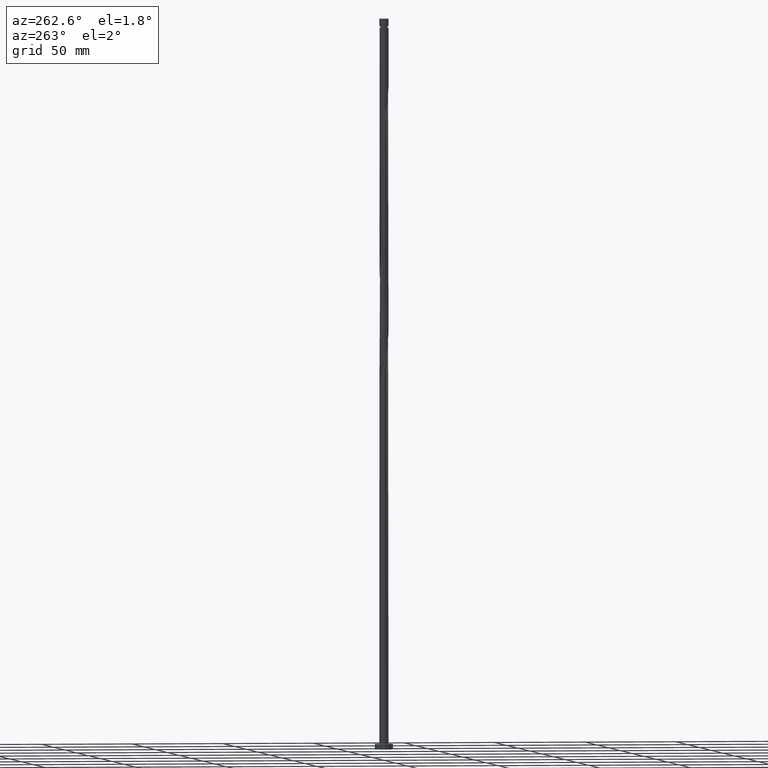
[diagram: clean part render]
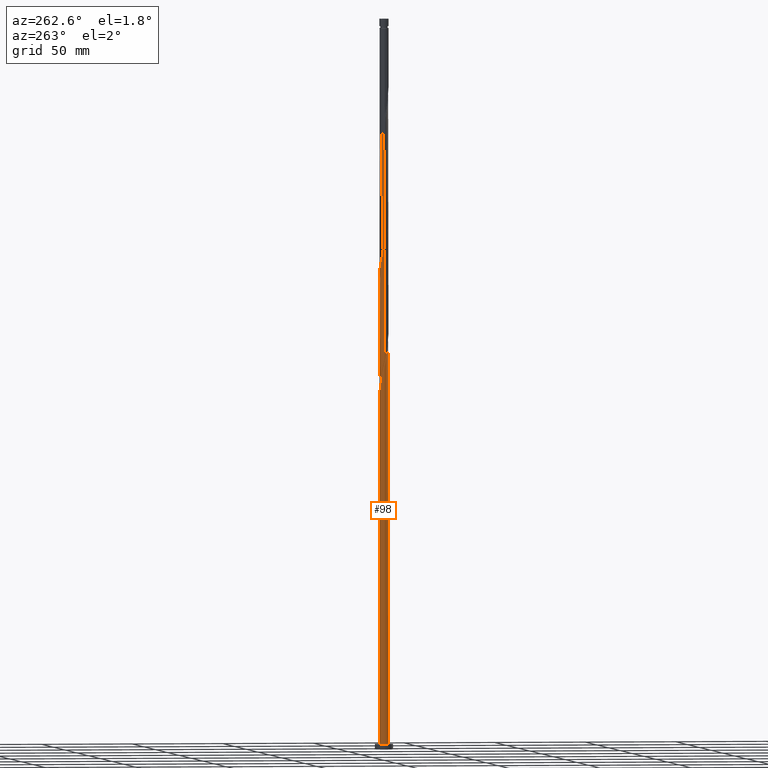
[diagram: same view with one face highlighted and labeled with its STEP entity id]
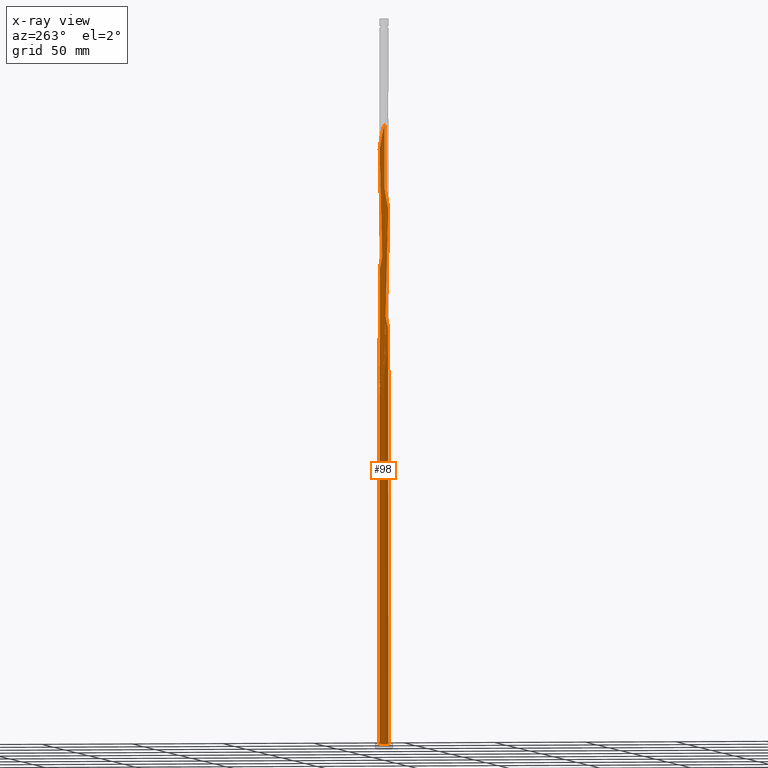
[diagram: x-ray of the same camera — body ghosted, the highlighted face saturated]
A machine part, auxiliary view. The second image highlights one B-rep face of the part: STEP entity #98.
The next image is the same camera in x-ray: the body ghosted, the highlighted face saturated — about 0% of this face is hidden behind the body in this view.
In plain terms, the highlighted cylindrical surface (bore or boss wall) has radius 2.5 mm, axis along (-0, -0, -1).
Its self-contained STEP definition (entity closure, byte-faithful):
#5 = CARTESIAN_POINT ( 'NONE',  ( 1.842554741020978826, -1.689672165344843879, 301.6006143378407387 ) ) ;
#14 = CARTESIAN_POINT ( 'NONE',  ( 0.2399883421524063309, 2.502288696838022908, 196.0450587822852242 ) ) ;
#15 = CARTESIAN_POINT ( 'NONE',  ( -2.153593095974919880, 1.269660102928802825, 337.1561698933962816 ) ) ;
#50 = CARTESIAN_POINT ( 'NONE',  ( 0.000000000000000000, 0.000000000000000000, 400.0000000000000000 ) ) ;
#59 = CARTESIAN_POINT ( 'NONE',  ( -1.237012764418927047, 2.188342420042406644, 198.2672810045074812 ) ) ;
#70 = CARTESIAN_POINT ( 'NONE',  ( -2.020146441809248294, 1.496011858354687307, 269.3783921156186238 ) ) ;
#77 = CARTESIAN_POINT ( 'NONE',  ( -0.7985322446979098432, -2.383566525371198619, 222.7117254489518530 ) ) ;
#79 = CARTESIAN_POINT ( 'NONE',  ( -2.488580897537961079, -0.2386736609037002632, 277.1561698933962816 ) ) ;
#87 = DIRECTION ( 'NONE',  ( -0.000000000000000000, -0.000000000000000000, -1.000000000000000000 ) ) ;
#89 = CARTESIAN_POINT ( 'NONE',  ( 1.873015379995221386, 1.655842198490355521, 250.4895032267296244 ) ) ;
#98 = ADVANCED_FACE ( 'NONE', ( #349 ), #626, .T. ) ;
#101 = CARTESIAN_POINT ( 'NONE',  ( 0.7549990949542207952, -2.397711303161981000, 296.0450587822852526 ) ) ;
#109 = CARTESIAN_POINT ( 'NONE',  ( -2.370509098548533533, 0.7941578015096464327, 272.7117254489518814 ) ) ;
#130 = CARTESIAN_POINT ( 'NONE',  ( -1.237012764418927047, 2.188342420042406644, 331.6006143378407387 ) ) ;
#139 = CARTESIAN_POINT ( 'NONE',  ( 2.370509098548533533, -0.7941578015096472098, 306.0450587822851958 ) ) ;
#147 = CARTESIAN_POINT ( 'NONE',  ( 2.513666510145305288, -0.02288673122879862978, 309.3783921156185102 ) ) ;
#157 = CARTESIAN_POINT ( 'NONE',  ( 2.453978446956477821, -0.5450072555163764099, 307.1561698933962816 ) ) ;
#172 = CARTESIAN_POINT ( 'NONE',  ( 0.4974937185533142014, 2.449999999999999289, 194.9339476711740247 ) ) ;
#216 = CARTESIAN_POINT ( 'NONE',  ( -0.7549990949542217944, 2.397711303161980112, 262.7117254489518814 ) ) ;
#223 = CARTESIAN_POINT ( 'NONE',  ( -1.698979352002255805, -1.852704047645605812, 218.2672810045074243 ) ) ;
#225 = CARTESIAN_POINT ( 'NONE',  ( -1.276653745726378242, -2.165455688813609392, 287.1561698933963953 ) ) ;
#232 = CARTESIAN_POINT ( 'NONE',  ( -0.02276135532044886930, -2.499896381993460981, 226.0450587822851389 ) ) ;
#234 = CARTESIAN_POINT ( 'NONE',  ( 1.450987902325817425, -2.035837446188703659, 232.7117254489517961 ) ) ;
#244 = CARTESIAN_POINT ( 'NONE',  ( -1.487816548864316246, -2.009079868229606269, 286.0450587822851389 ) ) ;
#247 = ORIENTED_EDGE ( 'NONE', *, *, #943, .F. ) ;
#252 = CARTESIAN_POINT ( 'NONE',  ( 1.664963040232709579, -1.883332472335000896, 233.8228365600629388 ) ) ;
#262 = CARTESIAN_POINT ( 'NONE',  ( 2.047051407988187410, 1.458980349335109006, 316.0450587822853663 ) ) ;
#267 = EDGE_CURVE ( 'NONE', #854, #1574, #1445, .T. ) ;
#284 = CARTESIAN_POINT ( 'NONE',  ( 1.450987902325817425, -2.035837446188703659, 299.3783921156185670 ) ) ;
#297 = VERTEX_POINT ( 'NONE', #1344 ) ;
#302 = AXIS2_PLACEMENT_3D ( 'NONE', #1764, #1050, #621 ) ;
#330 = CARTESIAN_POINT ( 'NONE',  ( -1.487816548864312916, 2.009079868229604049, 203.8228365600629388 ) ) ;
#340 = DIRECTION ( 'NONE',  ( -1.000000000000000000, 0.000000000000000000, 0.000000000000000000 ) ) ;
#349 = FACE_OUTER_BOUND ( 'NONE', #1630, .T. ) ;
#359 = CARTESIAN_POINT ( 'NONE',  ( 2.500000000000000000, 0.000000000000000000, 3.000000000000000000 ) ) ;
#361 = CARTESIAN_POINT ( 'NONE',  ( 0.5420216487456075427, 2.440535296260046838, 257.1561698933962816 ) ) ;
#369 = CARTESIAN_POINT ( 'NONE',  ( -2.047051407988186522, -1.458980349335109228, 216.0450587822852526 ) ) ;
#371 = CARTESIAN_POINT ( 'NONE',  ( -2.153593095974919880, 1.269660102928802825, 270.4895032267295960 ) ) ;
#379 = CARTESIAN_POINT ( 'NONE',  ( -2.500000000000004441, 2.780405268243619945E-15, 209.4751710943192506 ) ) ;
#381 = CARTESIAN_POINT ( 'NONE',  ( 0.4974937185533135353, -2.450000000000003286, 294.9339476711740531 ) ) ;
#389 = CARTESIAN_POINT ( 'NONE',  ( -1.037592995212143432, -2.274511107092404227, 221.6006143378407387 ) ) ;
#391 = CARTESIAN_POINT ( 'NONE',  ( 0.7985322446979101763, 2.383566525371198619, 256.0450587822852526 ) ) ;
#402 = CARTESIAN_POINT ( 'NONE',  ( -1.873015379995220941, -1.655842198490356854, 283.8228365600629672 ) ) ;
#411 = CARTESIAN_POINT ( 'NONE',  ( 2.020146441809247850, -1.496011858354687973, 302.7117254489519951 ) ) ;
#419 = CARTESIAN_POINT ( 'NONE',  ( 0.5420216487456075427, 2.440535296260046838, 323.8228365600629104 ) ) ;
#429 = CARTESIAN_POINT ( 'NONE',  ( 1.487816548864316690, 2.009079868229606269, 319.3783921156185670 ) ) ;
#436 = CARTESIAN_POINT ( 'NONE',  ( 2.488580897537961079, 0.2386736609036988477, 310.4895032267295960 ) ) ;
#443 = EDGE_CURVE ( 'NONE', #1892, #1574, #1181, .T. ) ;
#508 = CARTESIAN_POINT ( 'NONE',  ( 0.000000000000000000, 0.000000000000000000, 3.000000000000000000 ) ) ;
#509 = CARTESIAN_POINT ( 'NONE',  ( -2.488580897537961079, -0.2386736609037002632, 210.4895032267295960 ) ) ;
#511 = CARTESIAN_POINT ( 'NONE',  ( 1.237012764418926603, -2.188342420042407976, 231.6006143378407671 ) ) ;
#512 = AXIS2_PLACEMENT_3D ( 'NONE', #508, #639, #1378 ) ;
#515 = CIRCLE ( 'NONE', #302, 2.500000000000000000 ) ;
#521 = CARTESIAN_POINT ( 'NONE',  ( 0.9960059296865733103, -2.293026861602193378, 230.4895032267295960 ) ) ;
#530 = CARTESIAN_POINT ( 'NONE',  ( -0.7985322446979098432, -2.383566525371198619, 289.3783921156185102 ) ) ;
#539 = CARTESIAN_POINT ( 'NONE',  ( -2.047051407988186522, -1.458980349335109228, 282.7117254489518245 ) ) ;
#548 = CARTESIAN_POINT ( 'NONE',  ( 2.463495284930619089, 0.5002340530361986115, 244.9339476711741099 ) ) ;
#556 = DIRECTION ( 'NONE',  ( -0.000000000000000000, -0.000000000000000000, -1.000000000000000000 ) ) ;
#560 = ORIENTED_EDGE ( 'NONE', *, *, #1119, .F. ) ;
#574 = CARTESIAN_POINT ( 'NONE',  ( 0.2855110527933026887, 2.497504067148895945, 324.9339476711741668 ) ) ;
#584 = CARTESIAN_POINT ( 'NONE',  ( -2.463495284930614204, 0.5002340530361987225, 211.6006143378407387 ) ) ;
#585 = CARTESIAN_POINT ( 'NONE',  ( 1.276653745726379130, 2.165455688813608504, 320.4895032267297665 ) ) ;
#594 = VERTEX_POINT ( 'NONE', #897 ) ;
#597 = CARTESIAN_POINT ( 'NONE',  ( 1.037592995212143432, 2.274511107092404671, 321.6006143378405682 ) ) ;
#602 = EDGE_CURVE ( 'NONE', #1032, #297, #842, .T. ) ;
#609 = CARTESIAN_POINT ( 'NONE',  ( -2.305657494602547875, 1.001492208794207084, 209.3783921156185954 ) ) ;
#615 = ORIENTED_EDGE ( 'NONE', *, *, #443, .T. ) ;
#621 = DIRECTION ( 'NONE',  ( 1.000000000000000000, 0.000000000000000000, 0.000000000000000000 ) ) ;
#624 = CARTESIAN_POINT ( 'NONE',  ( -2.500000000000000000, 0.1196099982168744441, 213.2175090557981889 ) ) ;
#626 = CYLINDRICAL_SURFACE ( 'NONE', #1647, 2.500000000000000000 ) ;
#639 = DIRECTION ( 'NONE',  ( 0.000000000000000000, 0.000000000000000000, 1.000000000000000000 ) ) ;
#647 = CARTESIAN_POINT ( 'NONE',  ( -2.500000000000000444, -1.621903073142123928E-15, 213.7260575813622552 ) ) ;
#650 = CARTESIAN_POINT ( 'NONE',  ( -2.500000000000004441, 2.780405268243619945E-15, 209.4751710943192506 ) ) ;
#652 = CARTESIAN_POINT ( 'NONE',  ( -2.483822478550890889, 0.2839469933725859430, 274.9339476711739962 ) ) ;
#657 =( BOUNDED_CURVE ( )  B_SPLINE_CURVE ( 2, ( #379, #1823, #509, #1112, #1700, #1095, #1682, #369, #1535, #223, #802, #957, #389, #77, #811, #661, #232, #832, #804, #1563, #521, #511, #234, #252, #978, #813, #1105, #1097, #1420, #1547, #1702, #823, #1114, #548, #663, #1404, #1712, #1135, #89, #1125, #1237, #1272, #959, #391, #361, #939, #1863, #968, #1527, #216, #794, #1262, #673, #1393, #1383, #70, #371, #1843, #109, #691, #652, #1825, #79, #1684, #950, #1556, #682, #539, #402, #1537, #244, #225, #1254, #530, #1693, #1245, #1412, #1834, #381, #101, #1853, #1150, #284, #1453, #5, #411, #1736, #850, #139, #157, #869, #147, #436, #1571, #1322, #701, #729, #262, #1728, #1299, #429, #585, #597, #1442, #419, #574, #1759, #719, #1007, #1462, #1159, #130, #709, #737, #1601, #987, #15, #996, #1720, #839, #1168, #1430, #1283 ),
 .UNSPECIFIED., .F., .T. ) 
 B_SPLINE_CURVE_WITH_KNOTS ( ( 3, 2, 2, 2, 2, 2, 2, 2, 2, 2, 2, 2, 2, 2, 2, 2, 2, 2, 2, 2, 2, 2, 2, 2, 2, 2, 2, 2, 2, 2, 2, 2, 2, 2, 2, 2, 2, 2, 2, 2, 2, 2, 2, 2, 2, 2, 2, 2, 2, 2, 2, 2, 2, 2, 2, 2, 2, 2, 2, 2, 2, 3 ),
 ( 0.05452860127731162104, 0.05833333333333334814, 0.06666666666666665186, 0.07499999999999995559, 0.08333333333333337034, 0.09166666666666667407, 0.09999999999999997780, 0.1083333333333332815, 0.1166666666666666963, 0.1250000000000000000, 0.1333333333333333037, 0.1416666666666667185, 0.1500000000000000222, 0.1583333333333333259, 0.1666666666666666297, 0.1750000000000000444, 0.1833333333333333481, 0.1916666666666666519, 0.1999999999999999556, 0.2083333333333333703, 0.2166666666666666741, 0.2249999999999999778, 0.2333333333333332815, 0.2416666666666666963, 0.2500000000000000000, 0.2583333333333333037, 0.2666666666666667185, 0.2750000000000000222, 0.2833333333333333259, 0.2916666666666666297, 0.3000000000000000444, 0.3083333333333333481, 0.3166666666666666519, 0.3249999999999999556, 0.3333333333333333703, 0.3416666666666666741, 0.3499999999999999778, 0.3583333333333332815, 0.3666666666666666963, 0.3750000000000000000, 0.3833333333333333037, 0.3916666666666667185, 0.4000000000000000222, 0.4083333333333333259, 0.4166666666666666297, 0.4250000000000000444, 0.4333333333333333481, 0.4416666666666666519, 0.4499999999999999556, 0.4583333333333333703, 0.4666666666666666741, 0.4749999999999999778, 0.4833333333333332815, 0.4916666666666666963, 0.5000000000000000000, 0.5083333333333333037, 0.5166666666666666075, 0.5250000000000000222, 0.5333333333333333259, 0.5416666666666667407, 0.5500000000000000444, 0.5545286012773115170 ),
 .UNSPECIFIED. ) 
 CURVE ( )  GEOMETRIC_REPRESENTATION_ITEM ( )  RATIONAL_B_SPLINE_CURVE ( ( 0.9066196499552625632, 0.9068171577856753984, 0.9090909090909743417, 0.9041108139712222824, 0.9090909090909743417, 0.9041108139712222824, 0.9090909090909743417, 0.9041108139712222824, 0.9090909090909743417, 0.9041108139712222824, 0.9090909090909743417, 0.9041108139712222824, 0.9090909090909743417, 0.9041108139712222824, 0.9090909090909743417, 0.9041108139712222824, 0.9090909090909743417, 0.9041108139712222824, 0.9090909090909743417, 0.9041108139712222824, 0.9090909090909743417, 0.9041108139712222824, 0.9090909090909743417, 0.9041108139712222824, 0.9090909090909743417, 0.9041108139712222824, 0.9090909090909743417, 0.9041108139712222824, 0.9090909090909743417, 0.9041108139712222824, 0.9090909090909743417, 0.9041108139712222824, 0.9090909090909743417, 0.9041108139712222824, 0.9090909090909743417, 0.9041108139712222824, 0.9090909090909743417, 0.9041108139712222824, 0.9090909090909743417, 0.9041108139712222824, 0.9090909090909743417, 0.9041108139712222824, 0.9090909090909743417, 0.9041108139712222824, 0.9090909090909743417, 0.9041108139712222824, 0.9090909090909743417, 0.9041108139712222824, 0.9090909090909743417, 0.9041108139712222824, 0.9090909090909743417, 0.9041108139712222824, 0.9090909090909743417, 0.9041108139712222824, 0.9090909090909743417, 0.9041108139712222824, 0.9090909090909743417, 0.9041108139712222824, 0.9090909090909743417, 0.9041108139712222824, 0.9090909090909743417, 0.9041108139712222824, 0.9090909090909743417, 0.9041108139712222824, 0.9090909090909743417, 0.9041108139712222824, 0.9090909090909743417, 0.9041108139712222824, 0.9090909090909743417, 0.9041108139712222824, 0.9090909090909743417, 0.9041108139712222824, 0.9090909090909743417, 0.9041108139712222824, 0.9090909090909743417, 0.9041108139712222824, 0.9090909090909743417, 0.9041108139712222824, 0.9090909090909743417, 0.9041108139712222824, 0.9090909090909743417, 0.9041108139712222824, 0.9090909090909743417, 0.9041108139712222824, 0.9090909090909743417, 0.9041108139712222824, 0.9090909090909743417, 0.9041108139712222824, 0.9090909090909743417, 0.9041108139712222824, 0.9090909090909743417, 0.9041108139712222824, 0.9090909090909743417, 0.9041108139712222824, 0.9090909090909743417, 0.9041108139712222824, 0.9090909090909743417, 0.9041108139712222824, 0.9090909090909743417, 0.9041108139712222824, 0.9090909090909743417, 0.9041108139712222824, 0.9090909090909743417, 0.9041108139712222824, 0.9090909090909743417, 0.9041108139712222824, 0.9090909090909743417, 0.9041108139712222824, 0.9090909090909743417, 0.9041108139712222824, 0.9090909090909743417, 0.9041108139712222824, 0.9090909090909743417, 0.9041108139712222824, 0.9090909090909743417, 0.9041108139712222824, 0.9090909090909743417, 0.9041108139712222824, 0.9090909090909743417, 0.9041108139712222824, 0.9090909090909743417, 0.9063845652765213368, 0.9066196499552625632 ) ) 
 REPRESENTATION_ITEM ( '' )  );
#661 = CARTESIAN_POINT ( 'NONE',  ( -0.2855110527933024667, -2.497504067148895945, 224.9339476711740815 ) ) ;
#663 = CARTESIAN_POINT ( 'NONE',  ( 2.384576389766585702, 0.7508631309152021815, 246.0450587822851958 ) ) ;
#671 = CARTESIAN_POINT ( 'NONE',  ( -2.483822478550890889, 0.2839469933725859430, 208.2672810045074243 ) ) ;
#673 = CARTESIAN_POINT ( 'NONE',  ( -1.450987902325818091, 2.035837446188702771, 266.0450587822851958 ) ) ;
#682 = CARTESIAN_POINT ( 'NONE',  ( -2.176354451295368087, -1.230236279064658378, 281.6006143378407387 ) ) ;
#684 = CARTESIAN_POINT ( 'NONE',  ( -0.4974937185533133133, 2.450000000000004174, 194.9339476711740531 ) ) ;
#691 = CARTESIAN_POINT ( 'NONE',  ( -2.453978446956477821, 0.5450072555163749666, 273.8228365600630809 ) ) ;
#701 = CARTESIAN_POINT ( 'NONE',  ( 2.305657494602551871, 1.001492208794206640, 313.8228365600627967 ) ) ;
#709 = CARTESIAN_POINT ( 'NONE',  ( -1.450987902325818091, 2.035837446188702771, 332.7117254489518245 ) ) ;
#719 = CARTESIAN_POINT ( 'NONE',  ( -0.2399883421524042215, 2.502288696838027793, 327.1561698933962248 ) ) ;
#729 = CARTESIAN_POINT ( 'NONE',  ( 2.176354451295368087, 1.230236279064657712, 314.9339476711739394 ) ) ;
#737 = CARTESIAN_POINT ( 'NONE',  ( -1.664963040232709801, 1.883332472335000229, 333.8228365600629672 ) ) ;
#762 = CARTESIAN_POINT ( 'NONE',  ( 0.000000000000000000, 0.000000000000000000, 194.9339476711740815 ) ) ;
#794 = CARTESIAN_POINT ( 'NONE',  ( -0.9960059296865743095, 2.293026861602192934, 263.8228365600629104 ) ) ;
#802 = CARTESIAN_POINT ( 'NONE',  ( -1.487816548864316246, -2.009079868229606269, 219.3783921156185102 ) ) ;
#804 = CARTESIAN_POINT ( 'NONE',  ( 0.4974937185533135353, -2.450000000000003286, 228.2672810045074243 ) ) ;
#811 = CARTESIAN_POINT ( 'NONE',  ( -0.5420216487456060994, -2.440535296260047282, 223.8228365600629104 ) ) ;
#813 = CARTESIAN_POINT ( 'NONE',  ( 2.020146441809247850, -1.496011858354687973, 236.0450587822852242 ) ) ;
#823 = CARTESIAN_POINT ( 'NONE',  ( 2.513666510145305288, -0.02288673122879862978, 242.7117254489518814 ) ) ;
#832 = CARTESIAN_POINT ( 'NONE',  ( 0.2399883421524056648, -2.502288696838027349, 227.1561698933963100 ) ) ;
#839 = CARTESIAN_POINT ( 'NONE',  ( -2.453978446956477821, 0.5450072555163749666, 340.4895032267295960 ) ) ;
#842 = CIRCLE ( 'NONE', #512, 2.500000000000000000 ) ;
#850 = CARTESIAN_POINT ( 'NONE',  ( 2.287039750140592798, -1.043308347502918565, 304.9339476711742236 ) ) ;
#854 = VERTEX_POINT ( 'NONE', #647 ) ;
#856 = CARTESIAN_POINT ( 'NONE',  ( 0.4974937185533142014, 2.449999999999999289, 194.9339476711740531 ) ) ;
#869 = CARTESIAN_POINT ( 'NONE',  ( 2.483822478550890889, -0.2839469933725862205, 308.2672810045074243 ) ) ;
#889 = CARTESIAN_POINT ( 'NONE',  ( -0.2855110527933011899, 2.497504067148891949, 198.2672810045074243 ) ) ;
#897 = CARTESIAN_POINT ( 'NONE',  ( -2.500000000000004441, 1.180924818232504868E-15, 342.8085044276526219 ) ) ;
#911 = EDGE_CURVE ( 'NONE', #1892, #1448, #1835, .T. ) ;
#914 = ORIENTED_EDGE ( 'NONE', *, *, #267, .F. ) ;
#925 = CARTESIAN_POINT ( 'NONE',  ( -2.500000000000005329, 0.1424343436160755427, 208.8695797849346434 ) ) ;
#936 = VECTOR ( 'NONE', #556, 1000.000000000000000 ) ;
#937 = CARTESIAN_POINT ( 'NONE',  ( -2.020146441809248294, 1.496011858354687307, 202.7117254489518530 ) ) ;
#939 = CARTESIAN_POINT ( 'NONE',  ( 0.2855110527933026887, 2.497504067148895945, 258.2672810045074243 ) ) ;
#943 = EDGE_CURVE ( 'NONE', #594, #854, #1514, .T. ) ;
#948 = CARTESIAN_POINT ( 'NONE',  ( -0.7549990949542217944, 2.397711303161980112, 196.0450587822851958 ) ) ;
#950 = CARTESIAN_POINT ( 'NONE',  ( -2.384576389766585702, -0.7508631309152030697, 279.3783921156185670 ) ) ;
#957 = CARTESIAN_POINT ( 'NONE',  ( -1.276653745726378242, -2.165455688813609392, 220.4895032267296244 ) ) ;
#959 = CARTESIAN_POINT ( 'NONE',  ( 1.037592995212143432, 2.274511107092404671, 254.9339476711739962 ) ) ;
#966 = CARTESIAN_POINT ( 'NONE',  ( -1.450987902325818091, 2.035837446188702771, 199.3783921156185102 ) ) ;
#968 = CARTESIAN_POINT ( 'NONE',  ( -0.2399883421524042215, 2.502288696838027793, 260.4895032267296529 ) ) ;
#978 = CARTESIAN_POINT ( 'NONE',  ( 1.842554741020978826, -1.689672165344843879, 234.9339476711739962 ) ) ;
#987 = CARTESIAN_POINT ( 'NONE',  ( -2.020146441809248294, 1.496011858354687307, 336.0450587822852526 ) ) ;
#996 = CARTESIAN_POINT ( 'NONE',  ( -2.287039750140593686, 1.043308347502918121, 338.2672810045074812 ) ) ;
#1007 = CARTESIAN_POINT ( 'NONE',  ( -0.4974937185533132022, 2.450000000000004174, 328.2672810045073675 ) ) ;
#1027 = CARTESIAN_POINT ( 'NONE',  ( -2.500000000000000000, 0.000000000000000000, 400.0000000000000000 ) ) ;
#1032 = VERTEX_POINT ( 'NONE', #359 ) ;
#1038 = CARTESIAN_POINT ( 'NONE',  ( -2.176354451295364090, 1.230236279064657046, 208.2672810045073959 ) ) ;
#1050 = DIRECTION ( 'NONE',  ( 0.000000000000000000, 0.000000000000000000, 1.000000000000000000 ) ) ;
#1054 = CARTESIAN_POINT ( 'NONE',  ( -1.698979352002252252, 1.852704047645602703, 204.9339476711740531 ) ) ;
#1065 = CARTESIAN_POINT ( 'NONE',  ( -2.384576389766580373, 0.7508631309152032918, 210.4895032267296813 ) ) ;
#1067 = DIRECTION ( 'NONE',  ( -0.000000000000000000, -0.000000000000000000, -1.000000000000000000 ) ) ;
#1095 = CARTESIAN_POINT ( 'NONE',  ( -2.305657494602551427, -1.001492208794207972, 213.8228365600630241 ) ) ;
#1097 = CARTESIAN_POINT ( 'NONE',  ( 2.287039750140592798, -1.043308347502918565, 238.2672810045074527 ) ) ;
#1105 = CARTESIAN_POINT ( 'NONE',  ( 2.153593095974919436, -1.269660102928803491, 237.1561698933963100 ) ) ;
#1112 = CARTESIAN_POINT ( 'NONE',  ( -2.463495284930619089, -0.5002340530361988336, 211.6006143378407671 ) ) ;
#1114 = CARTESIAN_POINT ( 'NONE',  ( 2.488580897537961079, 0.2386736609036988477, 243.8228365600629388 ) ) ;
#1117 = ORIENTED_EDGE ( 'NONE', *, *, #1740, .T. ) ;
#1119 = EDGE_CURVE ( 'NONE', #1448, #594, #657, .T. ) ;
#1125 = CARTESIAN_POINT ( 'NONE',  ( 1.698979352002256027, 1.852704047645605367, 251.6006143378408524 ) ) ;
#1135 = CARTESIAN_POINT ( 'NONE',  ( 2.047051407988187410, 1.458980349335109006, 249.3783921156185954 ) ) ;
#1150 = CARTESIAN_POINT ( 'NONE',  ( 1.237012764418926603, -2.188342420042407976, 298.2672810045073675 ) ) ;
#1159 = CARTESIAN_POINT ( 'NONE',  ( -0.9960059296865743095, 2.293026861602192934, 330.4895032267296529 ) ) ;
#1164 = CARTESIAN_POINT ( 'NONE',  ( -2.500000000000004441, 2.780405268243619945E-15, 209.4751710943192506 ) ) ;
#1168 = CARTESIAN_POINT ( 'NONE',  ( -2.483822478550890889, 0.2839469933725859430, 341.6006143378406819 ) ) ;
#1181 = CIRCLE ( 'NONE', #1551, 2.500000000000000000 ) ;
#1197 = EDGE_CURVE ( 'NONE', #1448, #297, #1746, .T. ) ;
#1226 = CARTESIAN_POINT ( 'NONE',  ( -1.664963040232709801, 1.883332472335000229, 200.4895032267296813 ) ) ;
#1237 = CARTESIAN_POINT ( 'NONE',  ( 1.487816548864316690, 2.009079868229606269, 252.7117254489517677 ) ) ;
#1245 = CARTESIAN_POINT ( 'NONE',  ( -0.2855110527933024667, -2.497504067148895945, 291.6006143378407955 ) ) ;
#1252 = CARTESIAN_POINT ( 'NONE',  ( -2.370509098548533533, 0.7941578015096464327, 206.0450587822851674 ) ) ;
#1254 = CARTESIAN_POINT ( 'NONE',  ( -1.037592995212143432, -2.274511107092404227, 288.2672810045073106 ) ) ;
#1260 = CARTESIAN_POINT ( 'NONE',  ( -2.500000000000000000, 0.000000000000000000, 400.0000000000000000 ) ) ;
#1262 = CARTESIAN_POINT ( 'NONE',  ( -1.237012764418927047, 2.188342420042406644, 264.9339476711740531 ) ) ;
#1272 = CARTESIAN_POINT ( 'NONE',  ( 1.276653745726379130, 2.165455688813608504, 253.8228365600629957 ) ) ;
#1283 = CARTESIAN_POINT ( 'NONE',  ( -2.500000000000004441, 1.180924818232504868E-15, 342.8085044276526219 ) ) ;
#1299 = CARTESIAN_POINT ( 'NONE',  ( 1.698979352002256027, 1.852704047645605367, 318.2672810045074812 ) ) ;
#1321 = CARTESIAN_POINT ( 'NONE',  ( -2.488580897537957526, 0.2386736609037011514, 212.7117254489518814 ) ) ;
#1322 = CARTESIAN_POINT ( 'NONE',  ( 2.384576389766585702, 0.7508631309152021815, 312.7117254489518814 ) ) ;
#1323 = ORIENTED_EDGE ( 'NONE', *, *, #911, .F. ) ;
#1331 = CARTESIAN_POINT ( 'NONE',  ( -2.500000000000000444, -1.621903073142123731E-15, 213.7260575813622552 ) ) ;
#1344 = CARTESIAN_POINT ( 'NONE',  ( -2.500000000000000000, 0.000000000000000000, 3.000000000000000000 ) ) ;
#1352 = DIRECTION ( 'NONE',  ( 0.000000000000000000, -0.000000000000000000, -1.000000000000000000 ) ) ;
#1378 = DIRECTION ( 'NONE',  ( 1.000000000000000000, 0.000000000000000000, 0.000000000000000000 ) ) ;
#1383 = CARTESIAN_POINT ( 'NONE',  ( -1.842554741020979048, 1.689672165344843879, 268.2672810045073106 ) ) ;
#1391 = CARTESIAN_POINT ( 'NONE',  ( -2.453978446956477821, 0.5450072555163749666, 207.1561698933963669 ) ) ;
#1393 = CARTESIAN_POINT ( 'NONE',  ( -1.664963040232709801, 1.883332472335000229, 267.1561698933962816 ) ) ;
#1402 = CARTESIAN_POINT ( 'NONE',  ( -2.287039750140593686, 1.043308347502918121, 204.9339476711740815 ) ) ;
#1404 = CARTESIAN_POINT ( 'NONE',  ( 2.305657494602551871, 1.001492208794206640, 247.1561698933963385 ) ) ;
#1412 = CARTESIAN_POINT ( 'NONE',  ( -0.02276135532044886930, -2.499896381993460981, 292.7117254489518245 ) ) ;
#1420 = CARTESIAN_POINT ( 'NONE',  ( 2.370509098548533533, -0.7941578015096472098, 239.3783921156184817 ) ) ;
#1430 = CARTESIAN_POINT ( 'NONE',  ( -2.500000000000005329, 0.1424343436160788179, 342.2029131182680999 ) ) ;
#1442 = CARTESIAN_POINT ( 'NONE',  ( 0.7985322446979101763, 2.383566525371198619, 322.7117254489519382 ) ) ;
#1445 =( BOUNDED_CURVE ( )  B_SPLINE_CURVE ( 2, ( #1331, #624, #1321, #584, #1065, #609, #1038, #1634, #1503, #1054, #330, #1784, #1758, #1767, #1624, #889, #1643, #14, #172 ),
 .UNSPECIFIED., .F., .T. ) 
 B_SPLINE_CURVE_WITH_KNOTS ( ( 3, 2, 2, 2, 2, 2, 2, 2, 2, 3 ),
 ( 0.9295286012773114059, 0.9333333333333333481, 0.9416666666666666519, 0.9499999999999999556, 0.9583333333333333703, 0.9666666666666666741, 0.9749999999999999778, 0.9833333333333332815, 0.9916666666666666963, 1.000000000000000000 ),
 .UNSPECIFIED. ) 
 CURVE ( )  GEOMETRIC_REPRESENTATION_ITEM ( )  RATIONAL_B_SPLINE_CURVE ( ( 0.9066196499552554577, 0.9068171577856681820, 0.9090909090909671253, 0.9041108139712153990, 0.9090909090909671253, 0.9041108139712153990, 0.9090909090909671253, 0.9041108139712153990, 0.9090909090909671253, 0.9041108139712153990, 0.9090909090909671253, 0.9041108139712153990, 0.9090909090909671253, 0.9041108139712153990, 0.9090909090909671253, 0.9041108139712153990, 0.9090909090909671253, 0.9041108139712153990, 0.9090909090909671253 ) ) 
 REPRESENTATION_ITEM ( '' )  );
#1448 = VERTEX_POINT ( 'NONE', #1164 ) ;
#1453 = CARTESIAN_POINT ( 'NONE',  ( 1.664963040232709579, -1.883332472335000896, 300.4895032267297097 ) ) ;
#1462 = CARTESIAN_POINT ( 'NONE',  ( -0.7549990949542217944, 2.397711303161980112, 329.3783921156184533 ) ) ;
#1503 = CARTESIAN_POINT ( 'NONE',  ( -1.873015379995216945, 1.655842198490355077, 206.0450587822852242 ) ) ;
#1514 = LINE ( 'NONE', #1260, #1648 ) ;
#1527 = CARTESIAN_POINT ( 'NONE',  ( -0.4974937185533132022, 2.450000000000004174, 261.6006143378406819 ) ) ;
#1535 = CARTESIAN_POINT ( 'NONE',  ( -1.873015379995220941, -1.655842198490356854, 217.1561698933962532 ) ) ;
#1537 = CARTESIAN_POINT ( 'NONE',  ( -1.698979352002255805, -1.852704047645605812, 284.9339476711741099 ) ) ;
#1547 = CARTESIAN_POINT ( 'NONE',  ( 2.453978446956477821, -0.5450072555163764099, 240.4895032267297097 ) ) ;
#1551 = AXIS2_PLACEMENT_3D ( 'NONE', #762, #1352, #1611 ) ;
#1554 = CARTESIAN_POINT ( 'NONE',  ( -1.842554741020979048, 1.689672165344843879, 201.6006143378407103 ) ) ;
#1556 = CARTESIAN_POINT ( 'NONE',  ( -2.305657494602551427, -1.001492208794207972, 280.4895032267296529 ) ) ;
#1563 = CARTESIAN_POINT ( 'NONE',  ( 0.7549990949542207952, -2.397711303161981000, 229.3783921156185386 ) ) ;
#1571 = CARTESIAN_POINT ( 'NONE',  ( 2.463495284930619089, 0.5002340530361986115, 311.6006143378407955 ) ) ;
#1574 = VERTEX_POINT ( 'NONE', #856 ) ;
#1587 = ORIENTED_EDGE ( 'NONE', *, *, #1197, .F. ) ;
#1601 = CARTESIAN_POINT ( 'NONE',  ( -1.842554741020979048, 1.689672165344843879, 334.9339476711739962 ) ) ;
#1611 = DIRECTION ( 'NONE',  ( -1.000000000000000000, 0.000000000000000000, 0.000000000000000000 ) ) ;
#1624 = CARTESIAN_POINT ( 'NONE',  ( -0.5420216487456041010, 2.440535296260043729, 199.3783921156185102 ) ) ;
#1630 = EDGE_LOOP ( 'NONE', ( #247, #560, #1846, #1117, #1780, #1587, #1323, #615, #914 ) ) ;
#1634 = CARTESIAN_POINT ( 'NONE',  ( -2.047051407988182525, 1.458980349335108118, 207.1561698933963385 ) ) ;
#1643 = CARTESIAN_POINT ( 'NONE',  ( -0.02276135532044734275, 2.499896381993457872, 197.1561698933963385 ) ) ;
#1647 = AXIS2_PLACEMENT_3D ( 'NONE', #50, #1067, #340 ) ;
#1648 = VECTOR ( 'NONE', #87, 1000.000000000000000 ) ;
#1682 = CARTESIAN_POINT ( 'NONE',  ( -2.176354451295368087, -1.230236279064658378, 214.9339476711740531 ) ) ;
#1684 = CARTESIAN_POINT ( 'NONE',  ( -2.463495284930619089, -0.5002340530361988336, 278.2672810045074812 ) ) ;
#1693 = CARTESIAN_POINT ( 'NONE',  ( -0.5420216487456060994, -2.440535296260047282, 290.4895032267295960 ) ) ;
#1700 = CARTESIAN_POINT ( 'NONE',  ( -2.384576389766585702, -0.7508631309152030697, 212.7117254489518245 ) ) ;
#1702 = CARTESIAN_POINT ( 'NONE',  ( 2.483822478550890889, -0.2839469933725862205, 241.6006143378407103 ) ) ;
#1712 = CARTESIAN_POINT ( 'NONE',  ( 2.176354451295368087, 1.230236279064657712, 248.2672810045073675 ) ) ;
#1720 = CARTESIAN_POINT ( 'NONE',  ( -2.370509098548533533, 0.7941578015096464327, 339.3783921156184533 ) ) ;
#1728 = CARTESIAN_POINT ( 'NONE',  ( 1.873015379995221386, 1.655842198490355521, 317.1561698933962248 ) ) ;
#1736 = CARTESIAN_POINT ( 'NONE',  ( 2.153593095974919436, -1.269660102928803491, 303.8228365600628536 ) ) ;
#1740 = EDGE_CURVE ( 'NONE', #297, #1032, #515, .T. ) ;
#1746 = LINE ( 'NONE', #1027, #936 ) ;
#1758 = CARTESIAN_POINT ( 'NONE',  ( -1.037592995212140989, 2.274511107092400231, 201.6006143378407671 ) ) ;
#1759 = CARTESIAN_POINT ( 'NONE',  ( 0.02276135532044929258, 2.499896381993460981, 326.0450587822851389 ) ) ;
#1764 = CARTESIAN_POINT ( 'NONE',  ( 0.000000000000000000, 0.000000000000000000, 3.000000000000000000 ) ) ;
#1767 = CARTESIAN_POINT ( 'NONE',  ( -0.7985322446979069566, 2.383566525371195954, 200.4895032267296529 ) ) ;
#1780 = ORIENTED_EDGE ( 'NONE', *, *, #602, .T. ) ;
#1784 = CARTESIAN_POINT ( 'NONE',  ( -1.276653745726374689, 2.165455688813606283, 202.7117254489519098 ) ) ;
#1823 = CARTESIAN_POINT ( 'NONE',  ( -2.500000000000003553, -0.1196099982168801340, 209.9837196198833169 ) ) ;
#1825 = CARTESIAN_POINT ( 'NONE',  ( -2.513666510145305288, 0.02288673122879778324, 276.0450587822851958 ) ) ;
#1832 = CARTESIAN_POINT ( 'NONE',  ( -2.153593095974919880, 1.269660102928802825, 203.8228365600629104 ) ) ;
#1834 = CARTESIAN_POINT ( 'NONE',  ( 0.2399883421524056648, -2.502288696838027349, 293.8228365600629672 ) ) ;
#1835 =( BOUNDED_CURVE ( )  B_SPLINE_CURVE ( 2, ( #1851, #948, #1841, #59, #966, #1226, #1554, #937, #1832, #1402, #1252, #1391, #671, #925, #650 ),
 .UNSPECIFIED., .F., .T. ) 
 B_SPLINE_CURVE_WITH_KNOTS ( ( 3, 2, 2, 2, 2, 2, 2, 3 ),
 ( 0.000000000000000000, 0.008333333333333303727, 0.01666666666666671848, 0.02500000000000002220, 0.03333333333333332593, 0.04166666666666662966, 0.05000000000000004441, 0.05452860127731162104 ),
 .UNSPECIFIED. ) 
 CURVE ( )  GEOMETRIC_REPRESENTATION_ITEM ( )  RATIONAL_B_SPLINE_CURVE ( ( 0.9090909090909743417, 0.9041108139712222824, 0.9090909090909743417, 0.9041108139712222824, 0.9090909090909743417, 0.9041108139712222824, 0.9090909090909743417, 0.9041108139712222824, 0.9090909090909743417, 0.9041108139712222824, 0.9090909090909743417, 0.9041108139712222824, 0.9090909090909743417, 0.9063845652765212257, 0.9066196499552625632 ) ) 
 REPRESENTATION_ITEM ( '' )  );
#1841 = CARTESIAN_POINT ( 'NONE',  ( -0.9960059296865743095, 2.293026861602192934, 197.1561698933961964 ) ) ;
#1843 = CARTESIAN_POINT ( 'NONE',  ( -2.287039750140593686, 1.043308347502918121, 271.6006143378407387 ) ) ;
#1846 = ORIENTED_EDGE ( 'NONE', *, *, #1197, .T. ) ;
#1851 = CARTESIAN_POINT ( 'NONE',  ( -0.4974937185533133133, 2.450000000000004174, 194.9339476711740531 ) ) ;
#1853 = CARTESIAN_POINT ( 'NONE',  ( 0.9960059296865733103, -2.293026861602193378, 297.1561698933961679 ) ) ;
#1863 = CARTESIAN_POINT ( 'NONE',  ( 0.02276135532044929258, 2.499896381993460981, 259.3783921156184533 ) ) ;
#1892 = VERTEX_POINT ( 'NONE', #684 ) ;